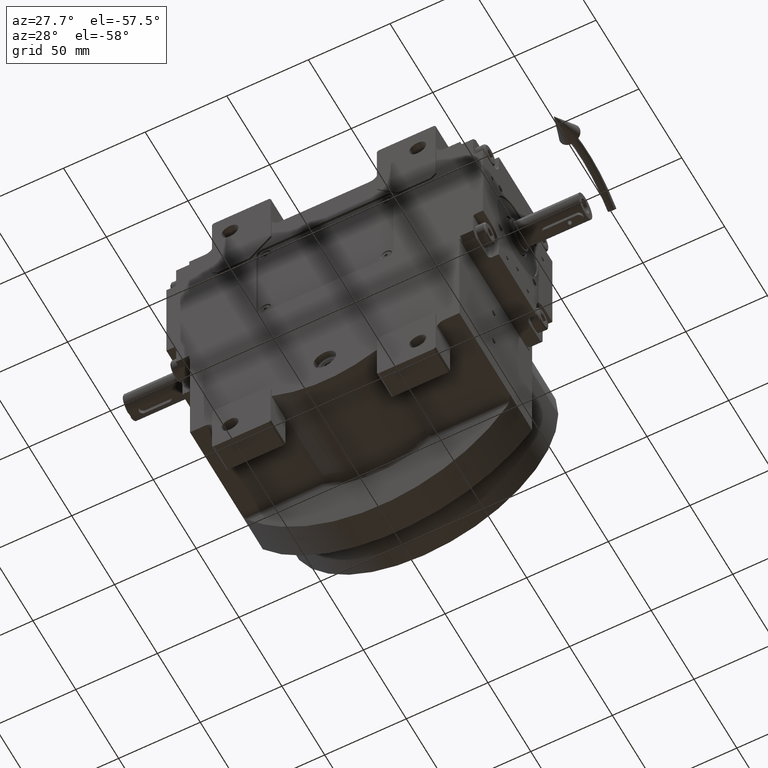
[diagram: clean part render]
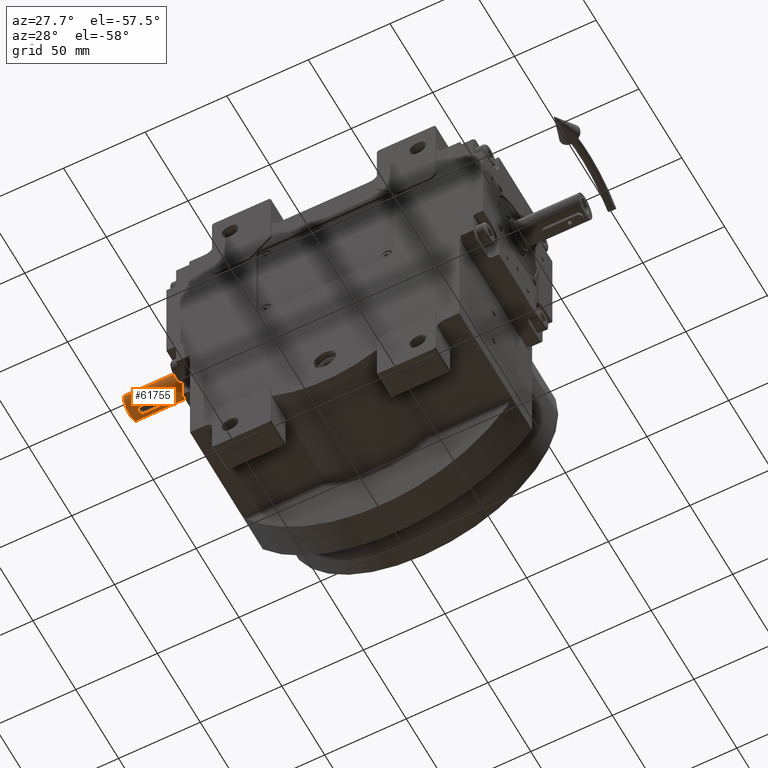
[diagram: same view with one face highlighted and labeled with its STEP entity id]
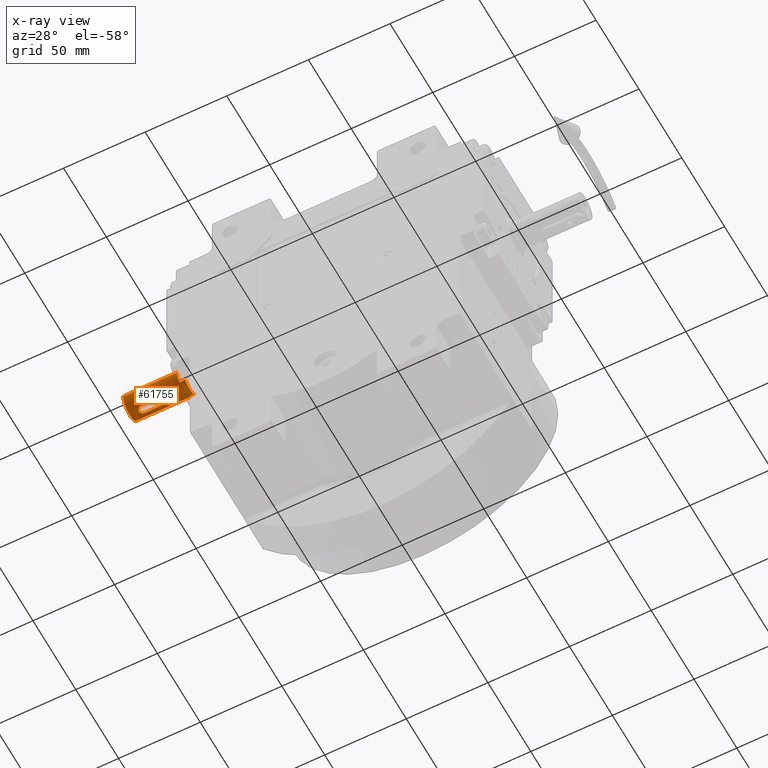
[diagram: x-ray of the same camera — body ghosted, the highlighted face saturated]
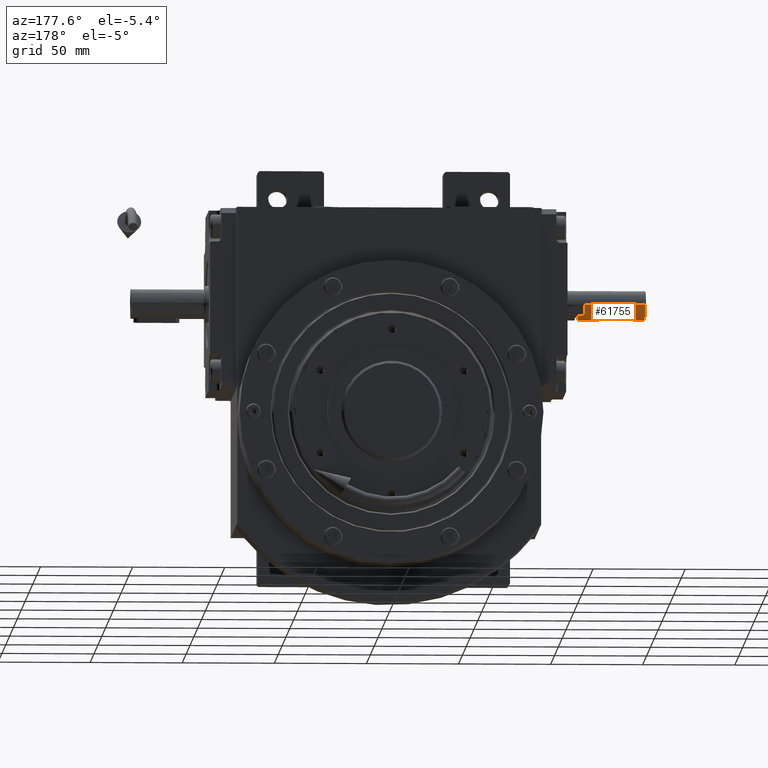
[diagram: same view with one face highlighted and labeled with its STEP entity id]
A machine part, auxiliary view. The second image highlights one B-rep face of the part: STEP entity #61755.
The next image is the same camera in x-ray: the body ghosted, the highlighted face saturated — about 8% of this face is hidden behind the body in this view.
A second angle (auxiliary view) of the same face is appended — the face is thin or edge-on in the first view.
In plain terms, the highlighted cylindrical surface (edge-blend (fillet) strip) has radius 8 mm, axis along (-1, 0, -0).
Its self-contained STEP definition (entity closure, byte-faithful):
#34 = CARTESIAN_POINT ( 'NONE',  ( -7.881302571458890682, 10.58925715550691571, -1.372965806437928649 ) ) ;
#354 = CARTESIAN_POINT ( 'NONE',  ( -7.667427322750553387, 9.519709500358869647, -2.282718967080525463 ) ) ;
#678 = CARTESIAN_POINT ( 'NONE',  ( -7.640982165083587851, 9.300567574413690863, -2.369770024500429173 ) ) ;
#1057 = VECTOR ( 'NONE', #20346, 1000.000000000000000 ) ;
#1584 = CARTESIAN_POINT ( 'NONE',  ( -7.732775350933692948, -7.930266147985067349, 2.050536285096832501 ) ) ;
#1888 = EDGE_CURVE ( 'NONE', #36852, #38479, #41325, .T. ) ;
#1936 = ORIENTED_EDGE ( 'NONE', *, *, #36803, .F. ) ;
#1966 = CARTESIAN_POINT ( 'NONE',  ( 0.000000000000000000, 22.00000000000051870, 4.683861624749757595E-28 ) ) ;
#2229 = CARTESIAN_POINT ( 'NONE',  ( -7.999984010412704905, -9.000000000020543567, 0.3118716574275748332 ) ) ;
#2538 = CARTESIAN_POINT ( 'NONE',  ( -7.874218415723020392, -8.562397185236335417, 1.413017684629369386 ) ) ;
#2682 = B_SPLINE_CURVE_WITH_KNOTS ( 'NONE', 3,
 ( #42730, #62142, #57610, #8783, #8460, #57928, #43381, #28171, #32702, #47596, #22402, #57290, #38214, #52446, #47913, #63107, #8144, #3306, #17865, #3630, #37565, #23351, #23024, #62786, #18828, #13643, #33335, #38540, #28495, #48241, #58252, #13967, #33671, #53403, #27216, #42104, #61835, #17552, #37246, #56970, #12689, #58582, #29771, #24300, #29450, #14607, #10072, #25251, #54363, #53723, #48553, #33993, #54039, #23978, #59216 ),
 .UNSPECIFIED., .F., .F.,
 ( 4, 2, 2, 2, 2, 1, 1, 2, 2, 2, 2, 1, 1, 1, 2, 2, 2, 2, 2, 2, 2, 2, 1, 1, 1, 2, 2, 2, 1, 1, 1, 2, 4 ),
 ( 0.000000000000000000, 0.03124999999863926903, 0.04687499999795888966, 0.06249999999727851030, 0.09374999999591777933, 0.1093749999952372265, 0.1171874999948969293, 0.1210937499947267598, 0.1249999999945565765, 0.1562499999931941386, 0.1718749999925127392, 0.1796874999921719285, 0.1835937499920018146, 0.1855468749919167160, 0.1865234374918742222, 0.1874999999918317284, 0.2499999999890759605, 0.2578124999887314583, 0.2656249999883870672, 0.2812499999876985068, 0.3124999999863212752, 0.3144531249862347888, 0.3164062499861481914, 0.3203124999859750521, 0.3281249999856287736, 0.3437499999849362164, 0.3749999999835511022, 0.3789062499833780184, 0.3828124999832048792, 0.3906249999828584896, 0.4062499999821653218, 0.4374999999807790974, 0.4999999999780067039 ),
 .UNSPECIFIED. ) ;
#2781 = CARTESIAN_POINT ( 'NONE',  ( -7.999991997699565260, -8.999990980747663016, -3.297654613636213846E-10 ) ) ;
#2860 = CARTESIAN_POINT ( 'NONE',  ( -7.876988897941753720, -8.572925308882956230, 1.397495807186371675 ) ) ;
#2971 = CARTESIAN_POINT ( 'NONE',  ( -7.723938595366857562, 9.881714606277157031, 2.083476104502885562 ) ) ;
#3306 = CARTESIAN_POINT ( 'NONE',  ( -7.694369416824373253, -7.705765936253712312, -2.190386621413336954 ) ) ;
#3403 = CARTESIAN_POINT ( 'NONE',  ( -6.000000000000005329, 18.50000000000054357, 5.291502622129051758 ) ) ;
#3630 = CARTESIAN_POINT ( 'NONE',  ( -7.709360326101486471, -7.797750532431239279, -2.136891627761669632 ) ) ;
#3800 = DIRECTION ( 'NONE',  ( -1.000000000000000000, -6.505213034913026604E-16, 2.939673447408655940E-10 ) ) ;
#3832 = CARTESIAN_POINT ( 'NONE',  ( -7.599879365290489019, -6.668702691058381760, 2.499999999999863221 ) ) ;
#3936 = CARTESIAN_POINT ( 'NONE',  ( -6.000000000000005329, 18.50000000000054357, 5.291502622129051758 ) ) ;
#3948 = CARTESIAN_POINT ( 'NONE',  ( -7.833649818474545334, 10.40261782779354860, 1.623780940840403364 ) ) ;
#4258 = CARTESIAN_POINT ( 'NONE',  ( -7.683399797834407075, 9.633681484462931266, -2.228549154858577186 ) ) ;
#4571 = CARTESIAN_POINT ( 'NONE',  ( -7.869532006572331539, 10.54464776241704627, -1.439720344804886976 ) ) ;
#4848 = CARTESIAN_POINT ( 'NONE',  ( -7.599342076785392308, -6.500000000000005329, -2.500000000000132783 ) ) ;
#4892 = CARTESIAN_POINT ( 'NONE',  ( -7.950298931508330114, 10.83617327606148706, -0.8905620606375787007 ) ) ;
#5382 = CARTESIAN_POINT ( 'NONE',  ( -7.599342076785337241, -6.500000000000005329, 2.499999999999867217 ) ) ;
#5519 = CARTESIAN_POINT ( 'NONE',  ( -7.699863793423318725, 9.741869600887644864, -2.171271532933885862 ) ) ;
#6429 = CARTESIAN_POINT ( 'NONE',  ( -7.940918945624039438, -8.803989484582560365, 0.9704374996217896010 ) ) ;
#6479 = LINE ( 'NONE', #26177, #41385 ) ;
#6718 = CIRCLE ( 'NONE', #44886, 8.000000000000000000 ) ;
#6751 = CARTESIAN_POINT ( 'NONE',  ( -7.902975999635382998, -8.670003007698854347, 1.244086456379948968 ) ) ;
#7078 = CARTESIAN_POINT ( 'NONE',  ( -7.858430025142280506, -8.501602191622358973, 1.498267243204110200 ) ) ;
#7240 = VERTEX_POINT ( 'NONE', #48355 ) ;
#7477 = AXIS2_PLACEMENT_3D ( 'NONE', #23991, #39515, #19795 ) ;
#7692 = CARTESIAN_POINT ( 'NONE',  ( -7.729055373105611082, -7.910033180036226241, 2.064433519869723899 ) ) ;
#7815 = CARTESIAN_POINT ( 'NONE',  ( -7.866367115377316033, 10.53234680562570524, 1.455977534968692755 ) ) ;
#8107 = CIRCLE ( 'NONE', #27698, 7.999999999999825917 ) ;
#8126 = CARTESIAN_POINT ( 'NONE',  ( -7.709360308036112386, 9.797750442539376436, 2.136891682251111035 ) ) ;
#8144 = CARTESIAN_POINT ( 'NONE',  ( -7.677905417459887971, -7.597576733658496728, -2.247662227941513713 ) ) ;
#8154 = CARTESIAN_POINT ( 'NONE',  ( -6.106226635438360972E-13, 18.50000000000054357, -8.000000000000035527 ) ) ;
#8460 = CARTESIAN_POINT ( 'NONE',  ( -7.606637818076269042, -6.831061849080318105, -2.478315875081691377 ) ) ;
#8603 = VERTEX_POINT ( 'NONE', #49325 ) ;
#8754 = ORIENTED_EDGE ( 'NONE', *, *, #58305, .T. ) ;
#8764 = CARTESIAN_POINT ( 'NONE',  ( -7.974671713781322779, 10.91844612971858552, -0.6389180692160050246 ) ) ;
#8783 = CARTESIAN_POINT ( 'NONE',  ( -7.605022254006595261, -6.790474098278227899, -2.483408542904558480 ) ) ;
#9083 = CARTESIAN_POINT ( 'NONE',  ( -7.654844204821131370, 9.420231506114598474, 2.324497789962386651 ) ) ;
#9293 = CARTESIAN_POINT ( 'NONE',  ( -7.605156610450753085, -6.833212286728619134, 2.482886401503701546 ) ) ;
#9404 = CARTESIAN_POINT ( 'NONE',  ( -7.883707643493949035, 10.59832734404994703, -1.359130032935418786 ) ) ;
#9539 = EDGE_CURVE ( 'NONE', #15881, #11704, #13675, .T. ) ;
#9721 = CARTESIAN_POINT ( 'NONE',  ( -7.818312088486548461, 10.33759076527112164, -1.695249246791598718 ) ) ;
#9990 = LINE ( 'NONE', #34883, #1057 ) ;
#10052 = CARTESIAN_POINT ( 'NONE',  ( -7.599879391514158478, 8.668702861449720132, -2.500000000000137668 ) ) ;
#10072 = CARTESIAN_POINT ( 'NONE',  ( -7.944516351723681424, -8.816357582644887003, -0.9405335252425955916 ) ) ;
#10307 = DIRECTION ( 'NONE',  ( -1.809663530139005476E-14, 0.000000000000000000, -1.000000000000000000 ) ) ;
#10372 = CARTESIAN_POINT ( 'NONE',  ( -7.661021806882082785, 9.470254434902736662, -2.304066809917436842 ) ) ;
#10676 = VERTEX_POINT ( 'NONE', #2781 ) ;
#11136 = LINE ( 'NONE', #36350, #26015 ) ;
#11608 = CARTESIAN_POINT ( 'NONE',  ( -7.699863787163271134, -7.741869569860750033, 2.171271550294594288 ) ) ;
#11704 = VERTEX_POINT ( 'NONE', #13516 ) ;
#12408 = ORIENTED_EDGE ( 'NONE', *, *, #41106, .F. ) ;
#12557 = CARTESIAN_POINT ( 'NONE',  ( -7.736332535508957164, -7.949241378412951420, 2.037147536094310318 ) ) ;
#12609 = DIRECTION ( 'NONE',  ( 9.589590379092924760E-30, 1.000000000000000000, 2.537652627714952515E-16 ) ) ;
#12669 = CARTESIAN_POINT ( 'NONE',  ( -7.658711869185054866, 9.451839855107522226, 2.311727440271675871 ) ) ;
#12689 = CARTESIAN_POINT ( 'NONE',  ( -7.889219016176688193, -8.618996049596164610, -1.326908976154830722 ) ) ;
#12993 = CARTESIAN_POINT ( 'NONE',  ( -7.601064276211062065, 8.667645054921111480, 2.495729933866756234 ) ) ;
#13305 = CARTESIAN_POINT ( 'NONE',  ( -7.876988438292018557, 10.57292369365361573, 1.397498206811892407 ) ) ;
#13516 = CARTESIAN_POINT ( 'NONE',  ( -6.000000000000060396, 18.50000000000054357, -5.291502622129308442 ) ) ;
#13621 = CARTESIAN_POINT ( 'NONE',  ( -7.743278745458219703, 9.986810080997960526, 2.011469677891878582 ) ) ;
#13643 = CARTESIAN_POINT ( 'NONE',  ( -7.725387240851736337, -7.889793451436073468, -2.078094470859459975 ) ) ;
#13675 = CIRCLE ( 'NONE', #7477, 8.000000000000000000 ) ;
#13945 = CARTESIAN_POINT ( 'NONE',  ( -7.599342076785073452, 8.500000000000007105, 2.499999999999857891 ) ) ;
#13967 = CARTESIAN_POINT ( 'NONE',  ( -7.822112037379855387, -8.353734015663372148, -1.677560817557955275 ) ) ;
#14134 = DIRECTION ( 'NONE',  ( 6.661338149340800636E-16, -1.000000000000000000, 5.407682826782026163E-16 ) ) ;
#14162 = CARTESIAN_POINT ( 'NONE',  ( -7.640982172138289563, -7.300567616680996075, 2.369770010351384570 ) ) ;
#14274 = CARTESIAN_POINT ( 'NONE',  ( -7.902679435035097733, 10.66869311359750938, -1.244422812158144431 ) ) ;
#14589 = CARTESIAN_POINT ( 'NONE',  ( -7.957946083415724736, 10.86223953018513022, -0.8203742691562446732 ) ) ;
#14607 = CARTESIAN_POINT ( 'NONE',  ( -7.943162907986746291, -8.811708239887865446, -0.9518883688483192884 ) ) ;
#15548 = CARTESIAN_POINT ( 'NONE',  ( -7.768808236052439753, 10.11442204608119688, -1.910564298747437828 ) ) ;
#15827 = ORIENTED_EDGE ( 'NONE', *, *, #23544, .T. ) ;
#15881 = VERTEX_POINT ( 'NONE', #8154 ) ;
#16464 = CARTESIAN_POINT ( 'NONE',  ( -7.926554003438892160, -8.754144513868073574, 1.082347325202289712 ) ) ;
#17100 = CARTESIAN_POINT ( 'NONE',  ( -7.785011302192692106, -8.190009154376641121, 1.842431290608167238 ) ) ;
#17428 = CARTESIAN_POINT ( 'NONE',  ( -7.793358618215769695, -8.228183800796710301, 1.806672287149160505 ) ) ;
#17535 = CARTESIAN_POINT ( 'NONE',  ( -7.610461411958887368, 8.911438364252793676, 2.466246135030248698 ) ) ;
#17552 = CARTESIAN_POINT ( 'NONE',  ( -7.879689434043175567, -8.583162037776309816, -1.382196249327188875 ) ) ;
#17734 = CARTESIAN_POINT ( 'NONE',  ( -7.683399795064976168, -7.633681466435374929, 2.228549163935291677 ) ) ;
#17848 = CARTESIAN_POINT ( 'NONE',  ( -7.714072043893927422, 9.825599978242728127, 2.119820395924732814 ) ) ;
#17865 = CARTESIAN_POINT ( 'NONE',  ( -7.700175144064213661, -7.742333483072318501, -2.169897833938154719 ) ) ;
#18051 = CARTESIAN_POINT ( 'NONE',  ( -7.620319282521517579, -7.066686668034139807, 2.435251448458621404 ) ) ;
#18165 = CARTESIAN_POINT ( 'NONE',  ( -7.599610668966979787, 8.584334579730624526, 2.499999999999863221 ) ) ;
#18488 = CARTESIAN_POINT ( 'NONE',  ( -7.724778493946299562, 9.886405156516515191, 2.080357823360818426 ) ) ;
#18806 = CARTESIAN_POINT ( 'NONE',  ( -7.940028772635620236, 10.80092193619504748, 0.9776741871700286302 ) ) ;
#18828 = CARTESIAN_POINT ( 'NONE',  ( -7.724778522608795939, -7.886405297773482204, -2.080357729226393726 ) ) ;
#19126 = CARTESIAN_POINT ( 'NONE',  ( -7.629834084662908467, 9.182859042383055836, -2.405282339101181055 ) ) ;
#19319 = CARTESIAN_POINT ( 'NONE',  ( -8.326672684688674053E-14, -14.50000000000001243, 1.776356839397873232E-15 ) ) ;
#19456 = CARTESIAN_POINT ( 'NONE',  ( -7.620319284191918285, 9.066686673580765188, -2.435251446882377824 ) ) ;
#19699 = FACE_OUTER_BOUND ( 'NONE', #35079, .T. ) ;
#19746 = VERTEX_POINT ( 'NONE', #26132 ) ;
#19762 = CARTESIAN_POINT ( 'NONE',  ( -7.599342076785392308, 8.500000000000007105, -2.500000000000142109 ) ) ;
#19795 = DIRECTION ( 'NONE',  ( -1.787459069646502346E-14, 0.000000000000000000, -1.000000000000000000 ) ) ;
#20342 = DIRECTION ( 'NONE',  ( -5.028988270783950259E-30, -1.000000000000000000, -3.217488641336500757E-29 ) ) ;
#20346 = DIRECTION ( 'NONE',  ( -5.028988270783950259E-30, -1.000000000000000000, -3.217488641336500757E-29 ) ) ;
#20407 = CARTESIAN_POINT ( 'NONE',  ( -7.605156640088294395, 8.833212475600760172, -2.482886367908335945 ) ) ;
#20918 = AXIS2_PLACEMENT_3D ( 'NONE', #44889, #20342, #10307 ) ;
#21049 = CIRCLE ( 'NONE', #59264, 8.000000000000175859 ) ;
#21155 = DIRECTION ( 'NONE',  ( 5.028988270783950259E-30, 1.000000000000000000, 3.217488641336500757E-29 ) ) ;
#21422 = VERTEX_POINT ( 'NONE', #42688 ) ;
#21639 = CARTESIAN_POINT ( 'NONE',  ( -7.980697463699272021, -8.940823933977828375, 0.6416072946251051290 ) ) ;
#22274 = CARTESIAN_POINT ( 'NONE',  ( -7.891112839043294080, -8.626489160832742087, 1.317554493892801881 ) ) ;
#22387 = CARTESIAN_POINT ( 'NONE',  ( -7.619989655309055365, 9.066245860163258286, 2.436251374074806186 ) ) ;
#22402 = CARTESIAN_POINT ( 'NONE',  ( -7.643326257871012608, -7.320565348340906553, -2.362159888309653510 ) ) ;
#22590 = CARTESIAN_POINT ( 'NONE',  ( -7.726044407597039587, -7.893444750241548569, 2.075649224252881009 ) ) ;
#22662 = VERTEX_POINT ( 'NONE', #29923 ) ;
#22692 = CARTESIAN_POINT ( 'NONE',  ( -7.937877676923800863, 10.79349587128952592, 0.9949699799994196070 ) ) ;
#23007 = CARTESIAN_POINT ( 'NONE',  ( -7.626113605264168704, 9.143576092737840000, 2.417132231454346414 ) ) ;
#23024 = CARTESIAN_POINT ( 'NONE',  ( -7.722682497957555015, -7.874681726748943511, -2.088134425561439578 ) ) ;
#23240 = EDGE_CURVE ( 'NONE', #11704, #7240, #6479, .T. ) ;
#23326 = CARTESIAN_POINT ( 'NONE',  ( -7.637261688103139434, 9.261285322827921718, 2.381622190885048340 ) ) ;
#23351 = CARTESIAN_POINT ( 'NONE',  ( -7.719777602169842545, -7.858291821616327333, -2.098871540419708470 ) ) ;
#23461 = ORIENTED_EDGE ( 'NONE', *, *, #9539, .F. ) ;
#23544 = EDGE_CURVE ( 'NONE', #15881, #19746, #9990, .T. ) ;
#23649 = CARTESIAN_POINT ( 'NONE',  ( -7.762422580053430110, 10.08250358490607468, 1.935803715325479901 ) ) ;
#23739 = CARTESIAN_POINT ( 'NONE',  ( -7.599342076785337241, -6.500000000000005329, 2.499999999999867217 ) ) ;
#23978 = CARTESIAN_POINT ( 'NONE',  ( -7.999983987892219872, -8.999999999989739763, -0.1559358289472140280 ) ) ;
#23991 = CARTESIAN_POINT ( 'NONE',  ( 0.000000000000000000, 18.50000000000054357, -3.552713678800128193E-15 ) ) ;
#24277 = CARTESIAN_POINT ( 'NONE',  ( -7.626444713845952350, 9.143902610680431309, -2.415982786262282911 ) ) ;
#24300 = CARTESIAN_POINT ( 'NONE',  ( -7.924323491686461551, -8.746521456702623709, -1.099911590010173468 ) ) ;
#24561 = DIRECTION ( 'NONE',  ( 5.028988270783950259E-30, 1.000000000000000000, 3.217488641336500757E-29 ) ) ;
#24602 = CARTESIAN_POINT ( 'NONE',  ( -7.833141412427774064, 10.40005464524851675, -1.625408653745600507 ) ) ;
#24915 = CARTESIAN_POINT ( 'NONE',  ( -7.944516461766632176, 10.81635858268966288, -0.9405310771788085722 ) ) ;
#25188 = LINE ( 'NONE', #4848, #46545 ) ;
#25231 = CARTESIAN_POINT ( 'NONE',  ( -7.670948581178381964, 9.545693707699285824, -2.270880331648928330 ) ) ;
#25251 = CARTESIAN_POINT ( 'NONE',  ( -7.946851830538784967, -8.824367221382333426, -0.9205611239592297323 ) ) ;
#26015 = VECTOR ( 'NONE', #21155, 1000.000000000000000 ) ;
#26131 = CARTESIAN_POINT ( 'NONE',  ( -7.667427320602748786, -7.519709476133543902, 2.282718977951658346 ) ) ;
#26132 = CARTESIAN_POINT ( 'NONE',  ( -8.326672684688674053E-14, -14.50000000000001243, -8.000000000000035527 ) ) ;
#26177 = CARTESIAN_POINT ( 'NONE',  ( -6.000000000000060396, 18.50000000000054357, -5.291502622129308442 ) ) ;
#26712 = B_SPLINE_CURVE_WITH_KNOTS ( 'NONE', 3,
 ( #41648, #2229, #21639, #6429, #41336, #31628, #51359, #16464, #61071, #6751, #22274, #46829, #2860, #46198, #2538, #56215, #41967, #7078, #51987, #61387, #36186, #27403, #17428, #17100, #50721, #32256, #56538, #30984, #56846, #12557, #1584, #7692, #26776, #51037, #46525, #22590, #62011, #11608, #17734, #37435, #57162, #26131, #45866, #29001, #57796, #62651, #14162, #28036, #42928, #18051, #37757, #9293, #3832, #38404 ),
 .UNSPECIFIED., .F., .F.,
 ( 4, 2, 2, 1, 1, 2, 2, 2, 1, 1, 2, 2, 2, 2, 2, 2, 2, 1, 1, 1, 2, 2, 2, 2, 1, 2, 2, 2, 2, 2, 4 ),
 ( 0.4999999999780067039, 0.6249999999835202935, 0.6289062499836926001, 0.6328124999838649067, 0.6406249999842095200, 0.6562499999848985244, 0.6874999999862765332, 0.6894531249863624645, 0.6914062499864485067, 0.6953124999866205913, 0.7031249999869642053, 0.7187499999876516554, 0.7499999999890261115, 0.7578124999893696145, 0.7656249999897131175, 0.7812499999904001236, 0.7968749999910871296, 0.8046874999914308546, 0.8085937499916031612, 0.8105468749916897586, 0.8115234374917326132, 0.8124999999917753568, 0.8437499999931452610, 0.8593749999938300466, 0.8671874999941726614, 0.8710937499943440798, 0.8749999999945153872, 0.9062499999958866237, 0.9218749999965721864, 0.9374999999972578602, 1.000000000000000000 ),
 .UNSPECIFIED. ) ;
#26776 = CARTESIAN_POINT ( 'NONE',  ( -7.727302901902333154, -7.900402247668325550, 2.070964047304901801 ) ) ;
#27121 = EDGE_CURVE ( 'NONE', #42689, #21422, #54026, .T. ) ;
#27216 = CARTESIAN_POINT ( 'NONE',  ( -7.858938483348102189, -8.504166614682857173, -1.496641347286817858 ) ) ;
#27403 = CARTESIAN_POINT ( 'NONE',  ( -7.798008126204820201, -8.249076481532668481, 1.786453217652258729 ) ) ;
#27519 = CARTESIAN_POINT ( 'NONE',  ( -7.874216865330345705, 10.56239167973915372, 1.413025745176700765 ) ) ;
#27698 = AXIS2_PLACEMENT_3D ( 'NONE', #35440, #55160, #30574 ) ;
#27826 = CARTESIAN_POINT ( 'NONE',  ( -7.793357275061124412, 10.22817784713570255, 1.806678030446586591 ) ) ;
#27969 = CARTESIAN_POINT ( 'NONE',  ( 1.065558752344486493E-08, -14.50000000007528556, 7.999999999924675365 ) ) ;
#28036 = CARTESIAN_POINT ( 'NONE',  ( -7.629834090008844605, -7.182859079824570614, 2.405282328503334455 ) ) ;
#28150 = CARTESIAN_POINT ( 'NONE',  ( -7.612765888282690518, 8.952742131180617235, 2.458965909810845396 ) ) ;
#28171 = CARTESIAN_POINT ( 'NONE',  ( -7.619989657867171751, -7.066245866914536933, -2.436251368447497789 ) ) ;
#28430 = FACE_BOUND ( 'NONE', #48663, .T. ) ;
#28474 = CARTESIAN_POINT ( 'NONE',  ( -7.963822675541611495, 10.88207045594552191, -0.7599439704952515307 ) ) ;
#28495 = CARTESIAN_POINT ( 'NONE',  ( -7.806699535334007400, -8.287437797547418938, -1.748100577266491706 ) ) ;
#28573 = DIRECTION ( 'NONE',  ( 5.028988270783950259E-30, 1.000000000000000000, 3.217488641336500757E-29 ) ) ;
#29001 = CARTESIAN_POINT ( 'NONE',  ( -7.661895575357880794, -7.477105763931899851, 2.301162700644161951 ) ) ;
#29111 = CARTESIAN_POINT ( 'NONE',  ( -7.678228994221786508, 9.598119699086208101, -2.246246729645732909 ) ) ;
#29260 = DIRECTION ( 'NONE',  ( -5.028988270783950259E-30, -1.000000000000000000, -3.217488641336500757E-29 ) ) ;
#29323 = ORIENTED_EDGE ( 'NONE', *, *, #31893, .F. ) ;
#29428 = CARTESIAN_POINT ( 'NONE',  ( -7.806698791854178587, 10.28743455259041184, -1.748103824073703016 ) ) ;
#29450 = CARTESIAN_POINT ( 'NONE',  ( -7.933816060829138372, -8.779558468202258936, -1.029148283453856783 ) ) ;
#29752 = CARTESIAN_POINT ( 'NONE',  ( -7.729055400556648081, 9.910033320374788346, -2.064433424120335925 ) ) ;
#29771 = CARTESIAN_POINT ( 'NONE',  ( -7.908308247135254376, -8.689115266421435280, -1.208073007163425583 ) ) ;
#29798 = ORIENTED_EDGE ( 'NONE', *, *, #62828, .F. ) ;
#29923 = CARTESIAN_POINT ( 'NONE',  ( -6.000000000000005329, 22.00000000000051870, 5.291502622129051758 ) ) ;
#30068 = CARTESIAN_POINT ( 'NONE',  ( -7.946852053313614661, 10.82436915705000224, -0.9205562516727971989 ) ) ;
#30164 = EDGE_CURVE ( 'NONE', #21422, #19746, #6718, .T. ) ;
#30574 = DIRECTION ( 'NONE',  ( -0.7500000000000014433, 0.000000000000000000, 0.6614378277661461247 ) ) ;
#30984 = CARTESIAN_POINT ( 'NONE',  ( -7.749664346031240214, -8.018729073758612103, 1.986231512394501131 ) ) ;
#31628 = CARTESIAN_POINT ( 'NONE',  ( -7.937879583209227263, -8.793501575971616191, 0.9949567978170127391 ) ) ;
#31893 = EDGE_CURVE ( 'NONE', #7240, #22662, #21049, .T. ) ;
#32256 = CARTESIAN_POINT ( 'NONE',  ( -7.769463525728018460, -8.116860130156863917, 1.907382607916640049 ) ) ;
#32348 = DIRECTION ( 'NONE',  ( 5.028988270783950259E-30, 1.000000000000000000, 3.217488641336500757E-29 ) ) ;
#32362 = CARTESIAN_POINT ( 'NONE',  ( -7.877248025395636510, 10.57390947069561093, 1.396040962320749479 ) ) ;
#32674 = LINE ( 'NONE', #3936, #59007 ) ;
#32687 = CARTESIAN_POINT ( 'NONE',  ( -7.677905413353856012, 9.597576702087074807, 2.247662242743615924 ) ) ;
#32702 = CARTESIAN_POINT ( 'NONE',  ( -7.626113596998536970, -7.143576033023848915, -2.417132246994160738 ) ) ;
#32993 = CARTESIAN_POINT ( 'NONE',  ( -7.940919006667417790, 10.80399002368006478, 0.9704362042913028397 ) ) ;
#33282 = ORIENTED_EDGE ( 'NONE', *, *, #59475, .T. ) ;
#33313 = CARTESIAN_POINT ( 'NONE',  ( -7.995163786308136622, 10.98537302236839430, -0.3160960575175699172 ) ) ;
#33335 = CARTESIAN_POINT ( 'NONE',  ( -7.740656023228742022, -7.974629792047414512, -2.021280222097369350 ) ) ;
#33387 = VERTEX_POINT ( 'NONE', #53654 ) ;
#33652 = CARTESIAN_POINT ( 'NONE',  ( -7.605022209670918798, 8.790473839629054709, 2.483408572969852735 ) ) ;
#33671 = CARTESIAN_POINT ( 'NONE',  ( -7.833136206238962451, -8.400033248968130195, -1.625433493732265644 ) ) ;
#33971 = CARTESIAN_POINT ( 'NONE',  ( -7.893782065358741384, 10.63592097824822247, -1.299344474639297253 ) ) ;
#33993 = CARTESIAN_POINT ( 'NONE',  ( -7.980697442142974829, -8.938304694916066495, -0.5580494228027357284 ) ) ;
#34294 = CARTESIAN_POINT ( 'NONE',  ( -7.943162383139123150, 10.81170671168997188, -0.9518920421091074946 ) ) ;
#34883 = CARTESIAN_POINT ( 'NONE',  ( -5.828670879282071837E-13, 18.50000000000054357, -8.000000000000035527 ) ) ;
#34947 = CARTESIAN_POINT ( 'NONE',  ( -7.858944166177312951, 10.50418803459841399, -1.496612663384491615 ) ) ;
#35079 = EDGE_LOOP ( 'NONE', ( #33282, #1936, #48566, #29323, #54502, #23461, #15827, #51292, #37682 ) ) ;
#35252 = CARTESIAN_POINT ( 'NONE',  ( -7.661895578303519194, 9.477105797576440338, -2.301162686349871311 ) ) ;
#35440 = CARTESIAN_POINT ( 'NONE',  ( 0.000000000000000000, 18.50000000000054357, -4.440892098500253819E-15 ) ) ;
#36186 = CARTESIAN_POINT ( 'NONE',  ( -7.818954714042943621, -8.341528619546075163, 1.694022000203355471 ) ) ;
#36350 = CARTESIAN_POINT ( 'NONE',  ( 1.276756478318930021E-12, -14.50000000000001243, 7.999999999999965361 ) ) ;
#36676 = ORIENTED_EDGE ( 'NONE', *, *, #1888, .F. ) ;
#36803 = EDGE_CURVE ( 'NONE', #63595, #8603, #8107, .T. ) ;
#36852 = VERTEX_POINT ( 'NONE', #60973 ) ;
#37231 = CARTESIAN_POINT ( 'NONE',  ( -7.858424809488385065, 10.50158257647105664, 1.498293586801583421 ) ) ;
#37246 = CARTESIAN_POINT ( 'NONE',  ( -7.881301598824089538, -8.589253119451681684, -1.372971940772247823 ) ) ;
#37435 = CARTESIAN_POINT ( 'NONE',  ( -7.678228992078041770, -7.598119682054336188, 2.246246738018459865 ) ) ;
#37544 = CARTESIAN_POINT ( 'NONE',  ( -7.926548573828249289, 10.75412700083584738, 1.082384327297592819 ) ) ;
#37565 = CARTESIAN_POINT ( 'NONE',  ( -7.714072064914495819, -7.825600082300069538, -2.119820331097357791 ) ) ;
#37682 = ORIENTED_EDGE ( 'NONE', *, *, #27121, .F. ) ;
#37757 = CARTESIAN_POINT ( 'NONE',  ( -7.617678112720124517, -7.029917826378963674, 2.443521394260771640 ) ) ;
#37809 = DIRECTION ( 'NONE',  ( -0.7499999999999984457, 0.000000000000000000, -0.6614378277661495664 ) ) ;
#37869 = CARTESIAN_POINT ( 'NONE',  ( -7.852616294803856256, 10.47877933185118238, 1.528426361149563428 ) ) ;
#38193 = CARTESIAN_POINT ( 'NONE',  ( -7.725387212731404496, 9.889793313502982741, 2.078094563100466807 ) ) ;
#38214 = CARTESIAN_POINT ( 'NONE',  ( -7.654844204338841607, -7.420231527821009365, -2.324497781422852682 ) ) ;
#38404 = CARTESIAN_POINT ( 'NONE',  ( -7.599342076785337241, -6.500000000000005329, 2.499999999999867217 ) ) ;
#38479 = VERTEX_POINT ( 'NONE', #57389 ) ;
#38517 = CARTESIAN_POINT ( 'NONE',  ( -7.798009086693891589, 10.24908076193292317, 1.786448939248669321 ) ) ;
#38540 = CARTESIAN_POINT ( 'NONE',  ( -7.766181138575222853, -8.108601794240989591, -1.926896157381329910 ) ) ;
#38664 = ORIENTED_EDGE ( 'NONE', *, *, #47421, .F. ) ;
#38845 = CARTESIAN_POINT ( 'NONE',  ( -7.726574902704086867, 9.896379824005130388, -2.073674504959927667 ) ) ;
#39476 = CARTESIAN_POINT ( 'NONE',  ( -7.726044425183427933, 9.893444836934005338, -2.075649166055709927 ) ) ;
#39515 = DIRECTION ( 'NONE',  ( 5.028988270783950259E-30, 1.000000000000000000, 3.217488641336500757E-29 ) ) ;
#41106 = EDGE_CURVE ( 'NONE', #10676, #47094, #26712, .T. ) ;
#41325 = B_SPLINE_CURVE_WITH_KNOTS ( 'NONE', 3,
 ( #13945, #18165, #12993, #33652, #53385, #17535, #28150, #22387, #23007, #23326, #62767, #56952, #9083, #42713, #12669, #52100, #32687, #57271, #47579, #8126, #17848, #52427, #61815, #2971, #18488, #38193, #57910, #13621, #23649, #42084, #48220, #43362, #27826, #38517, #46944, #3948, #37869, #37231, #7815, #63087, #27519, #62440, #13305, #32362, #58229, #57591, #62126, #37544, #47270, #22692, #18806, #32993, #42396, #52734, #43040, #33313, #53052, #8764, #28474, #14589, #4892, #30068, #24915, #34294, #54978, #53702, #63732, #14274, #33971, #59192, #9404, #34, #58873, #49178, #4571, #34947, #49814, #24602, #54019, #9721, #59520, #29428, #59833, #15548, #63405, #54340, #48533, #44331, #29752, #44638, #38845, #54666, #39476, #49494, #5519, #4258, #29111, #25231, #354, #48850, #35252, #10372, #44959, #678, #19126, #24277, #19456, #58566, #20407, #10052, #19762 ),
 .UNSPECIFIED., .F., .F.,
 ( 4, 2, 2, 2, 2, 1, 1, 2, 2, 2, 2, 1, 1, 1, 2, 2, 2, 2, 2, 2, 2, 2, 1, 1, 2, 2, 2, 1, 1, 2, 2, 2, 2, 2, 1, 1, 2, 2, 2, 2, 1, 1, 2, 2, 2, 2, 2, 2, 2, 2, 1, 1, 1, 2, 2, 2, 2, 1, 2, 2, 2, 2, 2, 4 ),
 ( 0.000000000000000000, 0.03124999999999732159, 0.04687499999999598238, 0.06249999999999464317, 0.09374999999999129863, 0.1093749999999896055, 0.1171874999999887590, 0.1210937499999883704, 0.1249999999999879818, 0.1562499999999814870, 0.1718749999999782674, 0.1796874999999764078, 0.1835937499999757694, 0.1855468749999754918, 0.1865234374999751310, 0.1874999999999747702, 0.2187499999999751588, 0.2343749999999752975, 0.2421874999999753808, 0.2499999999999754641, 0.2812499999999767963, 0.2968749999999772404, 0.3046874999999771849, 0.3085937499999768518, 0.3105468749999770184, 0.3124999999999771294, 0.3437499999999827360, 0.3593749999999857336, 0.3671874999999871214, 0.3710937499999876765, 0.3749999999999882316, 0.5000000000000126565, 0.5625000000000248690, 0.5937500000000309752, 0.6093750000000340838, 0.6171875000000355271, 0.6210937500000360822, 0.6250000000000365263, 0.6562500000000414113, 0.6718750000000440759, 0.6796875000000456302, 0.6835937500000465183, 0.6855468750000467404, 0.6875000000000468514, 0.7187500000000487388, 0.7343750000000496270, 0.7421875000000498490, 0.7500000000000500711, 0.7812500000000514033, 0.7968750000000524025, 0.8046875000000531797, 0.8085937500000536238, 0.8105468750000536238, 0.8115234375000532907, 0.8125000000000528466, 0.8437500000000419664, 0.8593750000000365263, 0.8671875000000337508, 0.8710937500000326406, 0.8750000000000314193, 0.9062500000000232037, 0.9218750000000190958, 0.9375000000000149880, 1.000000000000000000 ),
 .UNSPECIFIED. ) ;
#41336 = CARTESIAN_POINT ( 'NONE',  ( -7.940029773766399401, -8.800924872688485223, 0.9776672433655796413 ) ) ;
#41385 = VECTOR ( 'NONE', #12609, 1000.000000000000000 ) ;
#41648 = CARTESIAN_POINT ( 'NONE',  ( -7.999991997699565260, -8.999990980747663016, -3.297654613636213846E-10 ) ) ;
#41703 = DIRECTION ( 'NONE',  ( 5.028988270783950259E-30, 1.000000000000000000, 3.217488641336500757E-29 ) ) ;
#41967 = CARTESIAN_POINT ( 'NONE',  ( -7.866370906539946972, -8.532360691382576690, 1.455958116332377816 ) ) ;
#42084 = CARTESIAN_POINT ( 'NONE',  ( -7.769459565186877192, 10.11684157107170456, 1.907398453000360927 ) ) ;
#42104 = CARTESIAN_POINT ( 'NONE',  ( -7.869528224857211818, -8.544634516007480585, -1.439740124075520544 ) ) ;
#42396 = CARTESIAN_POINT ( 'NONE',  ( -7.980695544395188357, 10.94080689485991087, 0.6416482357331324549 ) ) ;
#42688 = CARTESIAN_POINT ( 'NONE',  ( -8.000000000000062172, -14.50000000000001243, 2.351740978372983101E-09 ) ) ;
#42689 = VERTEX_POINT ( 'NONE', #27969 ) ;
#42713 = CARTESIAN_POINT ( 'NONE',  ( -7.657274514683635402, 9.440225495199683792, 2.316482682551818773 ) ) ;
#42730 = CARTESIAN_POINT ( 'NONE',  ( -7.599342076785392308, -6.500000000000005329, -2.500000000000132783 ) ) ;
#42928 = CARTESIAN_POINT ( 'NONE',  ( -7.626444717560786124, -7.143902638985747622, 2.415982779006227599 ) ) ;
#43040 = CARTESIAN_POINT ( 'NONE',  ( -7.999984946499269611, 10.99999999902016157, -0.1559136959357281804 ) ) ;
#43362 = CARTESIAN_POINT ( 'NONE',  ( -7.785008876057604610, 10.18999816436970285, 1.842441418731128877 ) ) ;
#43381 = CARTESIAN_POINT ( 'NONE',  ( -7.612765919353318367, -6.952742327616979523, -2.458965872638230632 ) ) ;
#44331 = CARTESIAN_POINT ( 'NONE',  ( -7.732775387170930159, 9.930266335386756182, -2.050536154773778819 ) ) ;
#44638 = CARTESIAN_POINT ( 'NONE',  ( -7.727302924475895729, 9.900402361615585178, -2.070963970279529498 ) ) ;
#44886 = AXIS2_PLACEMENT_3D ( 'NONE', #19319, #14134, #3800 ) ;
#44889 = CARTESIAN_POINT ( 'NONE',  ( -8.326672684688674053E-14, -15.00000000000001421, -3.019858152799185818E-27 ) ) ;
#44959 = CARTESIAN_POINT ( 'NONE',  ( -7.649720842657127484, 9.380167526017849866, -2.341543772565651604 ) ) ;
#45770 = AXIS2_PLACEMENT_3D ( 'NONE', #54168, #29260, #59343 ) ;
#45866 = CARTESIAN_POINT ( 'NONE',  ( -7.664084483877389609, -7.494096094595430912, 2.293874103662838948 ) ) ;
#46198 = CARTESIAN_POINT ( 'NONE',  ( -7.875890344786150798, -8.568752829731700160, 1.403665058619066430 ) ) ;
#46525 = CARTESIAN_POINT ( 'NONE',  ( -7.726094655830539004, -7.893721478926240209, 2.075462118317775495 ) ) ;
#46545 = VECTOR ( 'NONE', #24561, 1000.000000000000000 ) ;
#46829 = CARTESIAN_POINT ( 'NONE',  ( -7.877247758819254209, -8.573908356511045881, 1.396042625276270766 ) ) ;
#46944 = CARTESIAN_POINT ( 'NONE',  ( -7.818950924554045834, 10.34151174380530591, 1.694038868013101107 ) ) ;
#47094 = VERTEX_POINT ( 'NONE', #5382 ) ;
#47270 = CARTESIAN_POINT ( 'NONE',  ( -7.934595521304153465, 10.78214323704112232, 1.021006897969870542 ) ) ;
#47421 = EDGE_CURVE ( 'NONE', #47094, #36852, #52522, .T. ) ;
#47579 = CARTESIAN_POINT ( 'NONE',  ( -7.700175131315993404, 9.742333418130654010, 2.169897870716044341 ) ) ;
#47596 = CARTESIAN_POINT ( 'NONE',  ( -7.637261675882658807, -7.261285248908506240, -2.381622214422398187 ) ) ;
#47913 = CARTESIAN_POINT ( 'NONE',  ( -7.658711875236480893, -7.451839925429555755, -2.311727411302235691 ) ) ;
#48220 = CARTESIAN_POINT ( 'NONE',  ( -7.780998603289602578, 10.17133684582571540, 1.859359978298561478 ) ) ;
#48241 = CARTESIAN_POINT ( 'NONE',  ( -7.810445813785888980, -8.303736805049988234, -1.731225908313895223 ) ) ;
#48355 = CARTESIAN_POINT ( 'NONE',  ( -6.000000000000324185, 22.00000000000051870, -5.291502622129308442 ) ) ;
#48533 = CARTESIAN_POINT ( 'NONE',  ( -7.736332577616511053, 9.949241596406887211, -2.037147381184005290 ) ) ;
#48553 = CARTESIAN_POINT ( 'NONE',  ( -7.971656876989960061, -8.908504921120881548, -0.6793964370148937171 ) ) ;
#48566 = ORIENTED_EDGE ( 'NONE', *, *, #53816, .T. ) ;
#48663 = EDGE_LOOP ( 'NONE', ( #38664, #12408, #29798, #8754, #36676 ) ) ;
#48850 = CARTESIAN_POINT ( 'NONE',  ( -7.664084486463556445, 9.494096124192232367, -2.293874090828096790 ) ) ;
#49178 = CARTESIAN_POINT ( 'NONE',  ( -7.878596580316718168, 10.57902351663136642, -1.388407151045347510 ) ) ;
#49325 = CARTESIAN_POINT ( 'NONE',  ( 0.000000000000000000, 18.50000000000054357, 7.999999999999965361 ) ) ;
#49494 = CARTESIAN_POINT ( 'NONE',  ( -7.712108570150658871, 9.816016835437377352, -2.127502101777040355 ) ) ;
#49814 = CARTESIAN_POINT ( 'NONE',  ( -7.839977690278450595, 10.42802790405988311, -1.591968337224201724 ) ) ;
#50721 = CARTESIAN_POINT ( 'NONE',  ( -7.781001480692795624, -8.171350014725661026, 1.859348112012540355 ) ) ;
#51037 = CARTESIAN_POINT ( 'NONE',  ( -7.726574882324661608, -7.896379721982782485, 2.073674573656081321 ) ) ;
#51292 = ORIENTED_EDGE ( 'NONE', *, *, #30164, .F. ) ;
#51359 = CARTESIAN_POINT ( 'NONE',  ( -7.934598688310455117, -8.782152912066639061, 1.020985076716943274 ) ) ;
#51987 = CARTESIAN_POINT ( 'NONE',  ( -7.852621985176591934, -8.478801237893561549, 1.528398000081773622 ) ) ;
#52100 = CARTESIAN_POINT ( 'NONE',  ( -7.668200324345895602, 9.527483920677822127, 2.280258831111348528 ) ) ;
#52427 = CARTESIAN_POINT ( 'NONE',  ( -7.719777577182462380, 9.858291698278508264, 2.098871620169352248 ) ) ;
#52446 = CARTESIAN_POINT ( 'NONE',  ( -7.657274517123529023, -7.440225538193761423, -2.316482665155040088 ) ) ;
#52522 = LINE ( 'NONE', #23739, #59587 ) ;
#52734 = CARTESIAN_POINT ( 'NONE',  ( -7.999982090879929508, 11.00000000195970173, 0.3118273447369484530 ) ) ;
#53052 = CARTESIAN_POINT ( 'NONE',  ( -7.980698877925072487, 10.93831210233454598, -0.5580170571611112740 ) ) ;
#53385 = CARTESIAN_POINT ( 'NONE',  ( -7.606637774589827927, 8.831061594767701806, 2.478315909362750258 ) ) ;
#53403 = CARTESIAN_POINT ( 'NONE',  ( -7.839972008357154465, -8.428005121883135331, -1.591995928213136624 ) ) ;
#53654 = CARTESIAN_POINT ( 'NONE',  ( -7.599342076785392308, -6.500000000000005329, -2.500000000000132783 ) ) ;
#53702 = CARTESIAN_POINT ( 'NONE',  ( -7.924329680634804696, 10.74654197988428805, -1.099869672103108709 ) ) ;
#53723 = CARTESIAN_POINT ( 'NONE',  ( -7.957945355145101374, -8.862233867186674274, -0.8203901879099854133 ) ) ;
#53816 = EDGE_CURVE ( 'NONE', #63595, #22662, #32674, .T. ) ;
#54019 = CARTESIAN_POINT ( 'NONE',  ( -7.822115816825180090, 10.35375000387849376, -1.677543191626158947 ) ) ;
#54026 = CIRCLE ( 'NONE', #45770, 8.000000000000000000 ) ;
#54039 = CARTESIAN_POINT ( 'NONE',  ( -7.995162348639846428, -8.985368823457067222, -0.3161290646995249531 ) ) ;
#54168 = CARTESIAN_POINT ( 'NONE',  ( -8.326672684688674053E-14, -14.50000000000001243, 8.881784196977471125E-16 ) ) ;
#54340 = CARTESIAN_POINT ( 'NONE',  ( -7.743938465828314577, 9.989268953828698727, -2.008273042403232456 ) ) ;
#54363 = CARTESIAN_POINT ( 'NONE',  ( -7.950298545264418593, -8.836170032045325584, -0.8905704671531213812 ) ) ;
#54502 = ORIENTED_EDGE ( 'NONE', *, *, #23240, .F. ) ;
#54599 = CYLINDRICAL_SURFACE ( 'NONE', #20918, 8.000000000000000000 ) ;
#54666 = CARTESIAN_POINT ( 'NONE',  ( -7.726094674724135913, 9.893721572861970515, -2.075462055241806603 ) ) ;
#54978 = CARTESIAN_POINT ( 'NONE',  ( -7.933820184732142344, 10.77957040418500156, -1.029119593313637449 ) ) ;
#55160 = DIRECTION ( 'NONE',  ( 5.028988270783950259E-30, 1.000000000000000000, 3.217488641336500757E-29 ) ) ;
#56215 = CARTESIAN_POINT ( 'NONE',  ( -7.870148552601055947, -8.546878638770436964, 1.435523779901909158 ) ) ;
#56538 = CARTESIAN_POINT ( 'NONE',  ( -7.762426901798054502, -8.082524201873939163, 1.935786860889370686 ) ) ;
#56846 = CARTESIAN_POINT ( 'NONE',  ( -7.743938414194391662, -7.989268687385895795, 2.008273239290690793 ) ) ;
#56952 = CARTESIAN_POINT ( 'NONE',  ( -7.651260057461952258, 9.390267165245727909, 2.336284816988136726 ) ) ;
#56970 = CARTESIAN_POINT ( 'NONE',  ( -7.883705967942038484, -8.598320449392561571, -1.359140628552879315 ) ) ;
#57162 = CARTESIAN_POINT ( 'NONE',  ( -7.670948579166386061, -7.545693686769191721, 2.270880341298063598 ) ) ;
#57271 = CARTESIAN_POINT ( 'NONE',  ( -7.694369406829941305, 9.705765883429668506, 2.190386650334031238 ) ) ;
#57290 = CARTESIAN_POINT ( 'NONE',  ( -7.651260052980091153, -7.390267157407302001, -2.336284820294352027 ) ) ;
#57389 = CARTESIAN_POINT ( 'NONE',  ( -7.599342076785392308, 8.500000000000007105, -2.500000000000142109 ) ) ;
#57591 = CARTESIAN_POINT ( 'NONE',  ( -7.902969796476416953, 10.66997973449641002, 1.244127049505119542 ) ) ;
#57610 = CARTESIAN_POINT ( 'NONE',  ( -7.601064315155432460, -6.667645281010250891, -2.495729919426480148 ) ) ;
#57796 = CARTESIAN_POINT ( 'NONE',  ( -7.661021802552385296, -7.470254389768755665, 2.304066828888795992 ) ) ;
#57910 = CARTESIAN_POINT ( 'NONE',  ( -7.733139016801557020, 9.932863856727067287, 2.049250553900862748 ) ) ;
#57928 = CARTESIAN_POINT ( 'NONE',  ( -7.610461448454181266, -6.911438580099014573, -2.466246098710449530 ) ) ;
#58229 = CARTESIAN_POINT ( 'NONE',  ( -7.891108706583535692, 10.62647181727947832, 1.317580379603381147 ) ) ;
#58252 = CARTESIAN_POINT ( 'NONE',  ( -7.818308903479839422, -8.337577135602677103, -1.695263955323612848 ) ) ;
#58305 = EDGE_CURVE ( 'NONE', #33387, #38479, #25188, .T. ) ;
#58566 = CARTESIAN_POINT ( 'NONE',  ( -7.617678118112553243, 9.029917857827808092, -2.443521386917022475 ) ) ;
#58582 = CARTESIAN_POINT ( 'NONE',  ( -7.899856527150351582, -8.658449960695531189, -1.262653213515654071 ) ) ;
#58873 = CARTESIAN_POINT ( 'NONE',  ( -7.879689921916749995, 10.58316408078938409, -1.382193177523865169 ) ) ;
#59007 = VECTOR ( 'NONE', #32348, 1000.000000000000000 ) ;
#59192 = CARTESIAN_POINT ( 'NONE',  ( -7.889222162295352447, 10.61900871907578114, -1.326888915456126972 ) ) ;
#59216 = CARTESIAN_POINT ( 'NONE',  ( -7.999991997699565260, -8.999990980747663016, -3.297654613636213846E-10 ) ) ;
#59264 = AXIS2_PLACEMENT_3D ( 'NONE', #1966, #41703, #37809 ) ;
#59343 = DIRECTION ( 'NONE',  ( 1.808519292393783527E-14, 0.000000000000000000, 1.000000000000000000 ) ) ;
#59475 = EDGE_CURVE ( 'NONE', #42689, #8603, #11136, .T. ) ;
#59520 = CARTESIAN_POINT ( 'NONE',  ( -7.810447572200426514, 10.30374450156927679, -1.731217953469695203 ) ) ;
#59587 = VECTOR ( 'NONE', #28573, 1000.000000000000000 ) ;
#59833 = CARTESIAN_POINT ( 'NONE',  ( -7.784192165088349213, 10.18809686728448227, -1.847419042669956601 ) ) ;
#60973 = CARTESIAN_POINT ( 'NONE',  ( -7.599342076785073452, 8.500000000000007105, 2.499999999999857891 ) ) ;
#61071 = CARTESIAN_POINT ( 'NONE',  ( -7.918991250507119162, -8.727407198976790070, 1.135923945974677940 ) ) ;
#61387 = CARTESIAN_POINT ( 'NONE',  ( -7.833655508177791660, -8.402641097587316921, 1.623753674898116728 ) ) ;
#61755 = ADVANCED_FACE ( 'NONE', ( #28430, #19699 ), #54599, .T. ) ;
#61815 = CARTESIAN_POINT ( 'NONE',  ( -7.722682470856994996, 9.874681593110569366, 2.088134513521174629 ) ) ;
#61835 = CARTESIAN_POINT ( 'NONE',  ( -7.878596839112149475, -8.579024431694421082, -1.388405784732242854 ) ) ;
#62011 = CARTESIAN_POINT ( 'NONE',  ( -7.712108559403882069, -7.816016782250823525, 2.127502132909679045 ) ) ;
#62126 = CARTESIAN_POINT ( 'NONE',  ( -7.918985045654509669, 10.72738594534157919, 1.135965620674081134 ) ) ;
#62142 = CARTESIAN_POINT ( 'NONE',  ( -7.599610693731793987, -6.584334723118930199, -2.500000000000137224 ) ) ;
#62440 = CARTESIAN_POINT ( 'NONE',  ( -7.875889439934075753, 10.56874963327139483, 1.403669773341472471 ) ) ;
#62651 = CARTESIAN_POINT ( 'NONE',  ( -7.649720846600994051, -7.380167541214359694, 2.341543764679520745 ) ) ;
#62767 = CARTESIAN_POINT ( 'NONE',  ( -7.643326268999204309, 9.320565408074484637, 2.362159866744192094 ) ) ;
#62786 = CARTESIAN_POINT ( 'NONE',  ( -7.723938623400872672, -7.881714744468441225, -2.083476012860455473 ) ) ;
#62828 = EDGE_CURVE ( 'NONE', #33387, #10676, #2682, .T. ) ;
#63087 = CARTESIAN_POINT ( 'NONE',  ( -7.870145651787323615, 10.54686819285890920, 1.435538763768742676 ) ) ;
#63107 = CARTESIAN_POINT ( 'NONE',  ( -7.668200327694430385, -7.527483958348799575, -2.280258813161119669 ) ) ;
#63405 = CARTESIAN_POINT ( 'NONE',  ( -7.749664401063705910, 10.01872935547022792, -1.986231297070850665 ) ) ;
#63595 = VERTEX_POINT ( 'NONE', #3403 ) ;
#63732 = CARTESIAN_POINT ( 'NONE',  ( -7.908314432885443779, 10.68913779988640300, -1.208032174181405072 ) ) ;